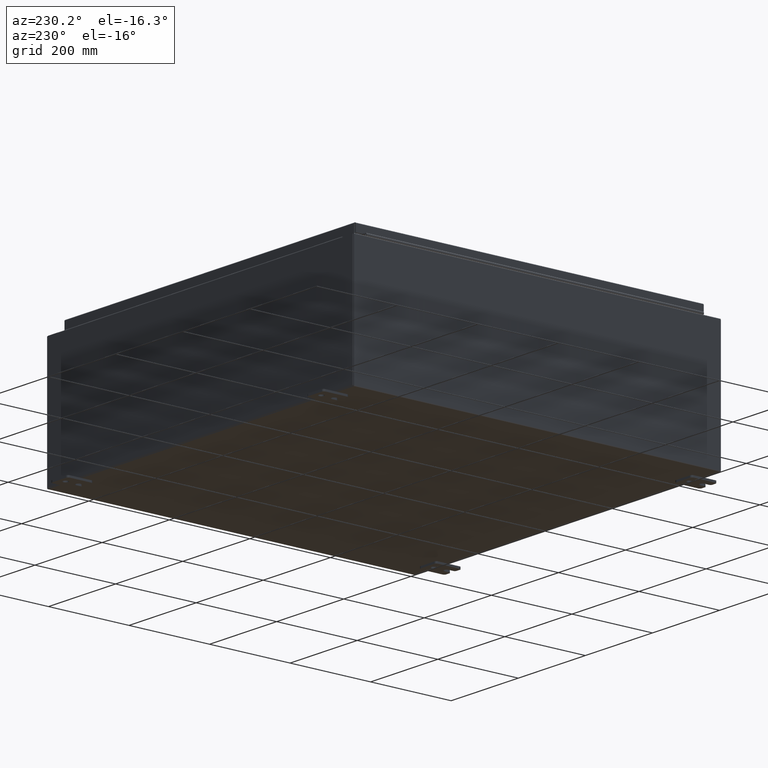
[diagram: clean part render]
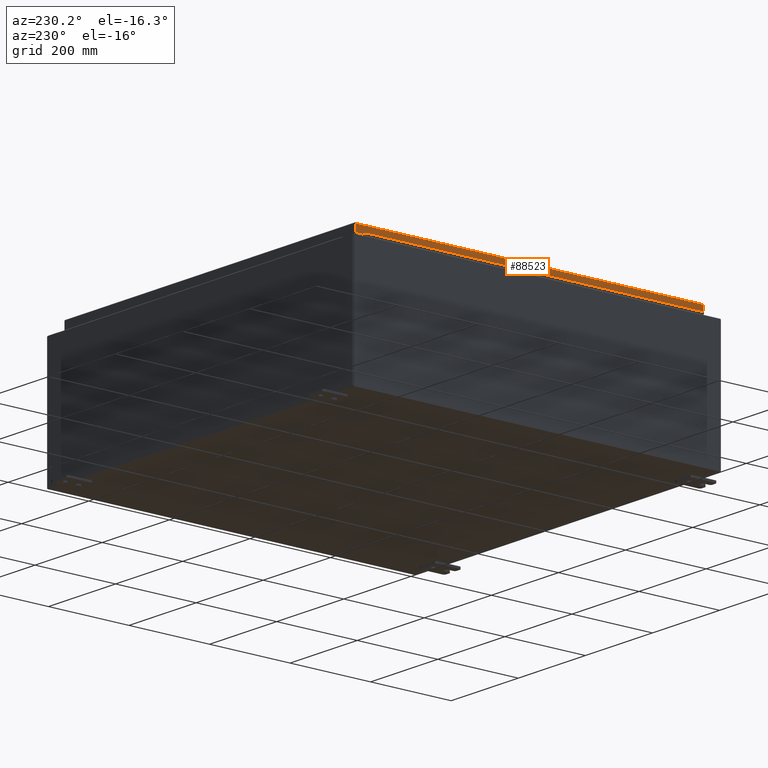
[diagram: same view with one face highlighted and labeled with its STEP entity id]
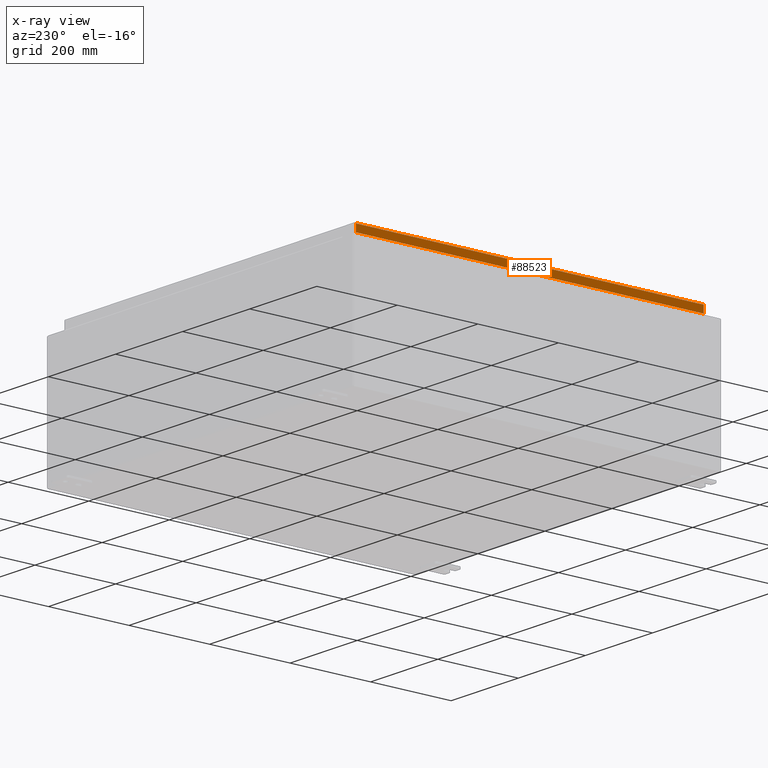
[diagram: x-ray of the same camera — body ghosted, the highlighted face saturated]
A machine part, auxiliary view. The second image highlights one B-rep face of the part: STEP entity #88523.
The next image is the same camera in x-ray: the body ghosted, the highlighted face saturated — about 0% of this face is hidden behind the body in this view.
In plain terms, the highlighted planar face has unit normal (1, -0, -0).
Its self-contained STEP definition (entity closure, byte-faithful):
#1069 = CARTESIAN_POINT ( 'NONE',  ( -17.07800000000000300, -17.00515786437626200, -0.7949999999999996000 ) ) ;
#4392 = LINE ( 'NONE', #94304, #103125 ) ;
#4919 = CARTESIAN_POINT ( 'NONE',  ( -17.07799999999999600, 17.00515786437627600, 1.708239394146136100E-013 ) ) ;
#5432 = DIRECTION ( 'NONE',  ( 1.000000000000000000, -1.278506139541011000E-016, -3.034122441942816500E-015 ) ) ;
#9410 = VECTOR ( 'NONE', #30309, 39.37007874015748100 ) ;
#9889 = CARTESIAN_POINT ( 'NONE',  ( -17.07799999999999600, 17.00515786437628000, -0.7949999999999954900 ) ) ;
#16366 = VECTOR ( 'NONE', #100630, 39.37007874015748100 ) ;
#22619 = CARTESIAN_POINT ( 'NONE',  ( -17.07799999999999900, -17.09399999999999800, -0.08770000000000004200 ) ) ;
#27419 = EDGE_CURVE ( 'NONE', #112939, #94004, #57301, .T. ) ;
#30000 = LINE ( 'NONE', #22619, #74915 ) ;
#30309 = DIRECTION ( 'NONE',  ( 1.278506139541014700E-016, 1.000000000000000000, 1.238552822680358400E-016 ) ) ;
#31496 = ORIENTED_EDGE ( 'NONE', *, *, #111434, .F. ) ;
#32280 = DIRECTION ( 'NONE',  ( -1.278506139541007100E-016, -1.000000000000000000, 1.278506139541014700E-016 ) ) ;
#33627 = VERTEX_POINT ( 'NONE', #97139 ) ;
#38418 = ORIENTED_EDGE ( 'NONE', *, *, #27419, .F. ) ;
#46347 = EDGE_CURVE ( 'NONE', #33627, #94004, #50833, .T. ) ;
#50833 = LINE ( 'NONE', #4919, #16366 ) ;
#57301 = LINE ( 'NONE', #87579, #9410 ) ;
#68858 = AXIS2_PLACEMENT_3D ( 'NONE', #117862, #5432, #72360 ) ;
#72360 = DIRECTION ( 'NONE',  ( -3.034122441942816500E-015, 0.0000000000000000000, -1.000000000000000000 ) ) ;
#74915 = VECTOR ( 'NONE', #32280, 39.37007874015748100 ) ;
#75506 = DIRECTION ( 'NONE',  ( -3.034122441942816100E-015, 6.982962677686265900E-015, -1.000000000000000000 ) ) ;
#84039 = CARTESIAN_POINT ( 'NONE',  ( -17.07799999999999900, -17.00515786437626500, -0.08770000000000224800 ) ) ;
#87579 = CARTESIAN_POINT ( 'NONE',  ( -17.07800000000000300, -17.09399999999999800, -0.7949999999999997100 ) ) ;
#88523 = ADVANCED_FACE ( 'NONE', ( #94239 ), #110367, .F. ) ;
#89242 = EDGE_CURVE ( 'NONE', #113548, #112939, #4392, .T. ) ;
#94004 = VERTEX_POINT ( 'NONE', #9889 ) ;
#94239 = FACE_OUTER_BOUND ( 'NONE', #102815, .T. ) ;
#94304 = CARTESIAN_POINT ( 'NONE',  ( -17.07799999999999900, -17.00515786437626900, -0.07469999999999976700 ) ) ;
#97139 = CARTESIAN_POINT ( 'NONE',  ( -17.07799999999999600, 17.00515786437627600, -0.08770000000000439900 ) ) ;
#100630 = DIRECTION ( 'NONE',  ( -3.034122441942816100E-015, 6.982962677686265900E-015, -1.000000000000000000 ) ) ;
#102815 = EDGE_LOOP ( 'NONE', ( #31496, #113413, #38418, #114460 ) ) ;
#103125 = VECTOR ( 'NONE', #75506, 39.37007874015748100 ) ;
#110367 = PLANE ( 'NONE',  #68858 ) ;
#111434 = EDGE_CURVE ( 'NONE', #33627, #113548, #30000, .T. ) ;
#112939 = VERTEX_POINT ( 'NONE', #1069 ) ;
#113413 = ORIENTED_EDGE ( 'NONE', *, *, #46347, .T. ) ;
#113548 = VERTEX_POINT ( 'NONE', #84039 ) ;
#114460 = ORIENTED_EDGE ( 'NONE', *, *, #89242, .F. ) ;
#117862 = CARTESIAN_POINT ( 'NONE',  ( -17.07799999999999600, 2.183432785108138600E-015, 5.207755671951099000E-014 ) ) ;